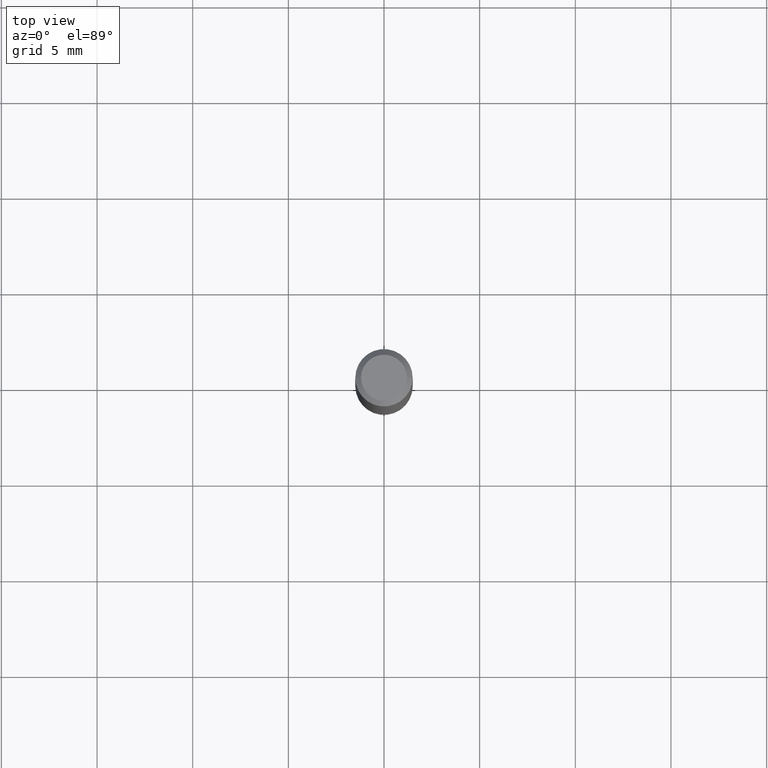
[diagram: clean part render]
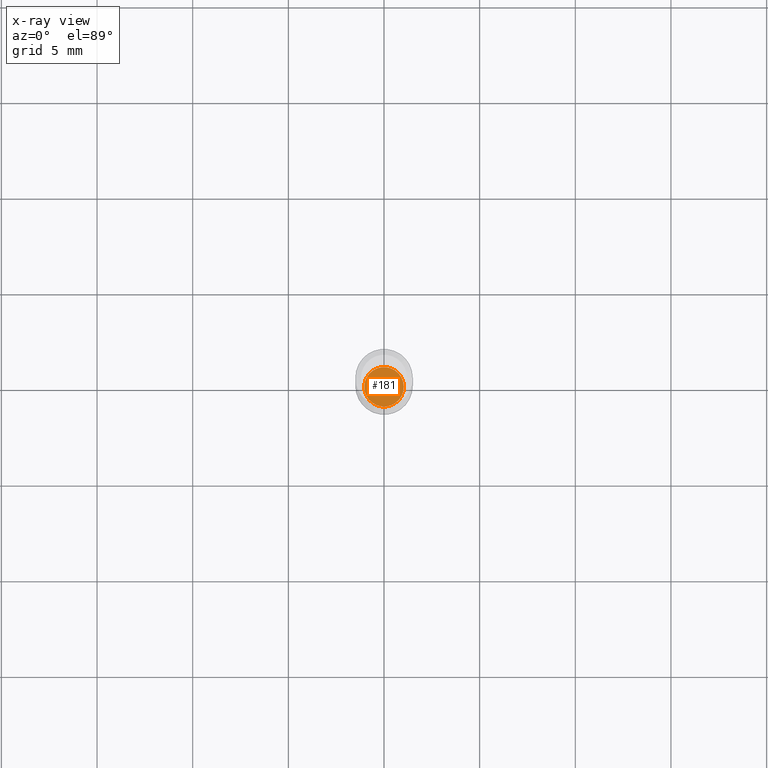
[diagram: x-ray — body ghosted, one internal face saturated and labeled with its STEP entity id]
A machine part, top view, then the same camera in x-ray: the body is ghosted and one INTERNAL B-rep face — a face not visible from any outside direction — is saturated and labeled: STEP entity #181.
In plain terms, the highlighted planar face has unit normal (-0, 0, 1).
Its self-contained STEP definition (entity closure, byte-faithful):
#1 = AXIS2_PLACEMENT_3D ( 'NONE', #198, #205, #444 ) ;
#7 = CARTESIAN_POINT ( 'NONE',  ( 2.676565608369631794E-29, -3.821426325363822773E-15, -1.094499999999999806 ) ) ;
#22 = VERTEX_POINT ( 'NONE', #147 ) ;
#65 = ORIENTED_EDGE ( 'NONE', *, *, #232, .F. ) ;
#75 = FACE_OUTER_BOUND ( 'NONE', #417, .T. ) ;
#99 = CARTESIAN_POINT ( 'NONE',  ( 2.676565608369631794E-29, -3.821426325363822773E-15, -1.094499999999999806 ) ) ;
#131 = DIRECTION ( 'NONE',  ( -2.445468806185136597E-29, 3.491481338843145583E-15, 1.000000000000000000 ) ) ;
#147 = CARTESIAN_POINT ( 'NONE',  ( -0.04064999999999999863, -3.529941476103230709E-15, -1.094499999999999806 ) ) ;
#148 = AXIS2_PLACEMENT_3D ( 'NONE', #7, #426, #389 ) ;
#155 = VERTEX_POINT ( 'NONE', #161 ) ;
#161 = CARTESIAN_POINT ( 'NONE',  ( 0.04064999999999999863, -4.105283758211769509E-15, -1.094499999999999806 ) ) ;
#181 = ADVANCED_FACE ( 'NONE', ( #75 ), #382, .F. ) ;
#198 = CARTESIAN_POINT ( 'NONE',  ( 2.676565608369631794E-29, -3.821426325363822773E-15, -1.094499999999999806 ) ) ;
#205 = DIRECTION ( 'NONE',  ( -2.438088387897960049E-29, 3.491481338843145188E-15, 1.000000000000000000 ) ) ;
#219 = ORIENTED_EDGE ( 'NONE', *, *, #466, .F. ) ;
#232 = EDGE_CURVE ( 'NONE', #155, #22, #300, .T. ) ;
#243 = DIRECTION ( 'NONE',  ( 1.000000000000000000, -6.982962677686262766E-15, 0.000000000000000000 ) ) ;
#300 = CIRCLE ( 'NONE', #308, 0.04064999999999999863 ) ;
#308 = AXIS2_PLACEMENT_3D ( 'NONE', #99, #131, #243 ) ;
#332 = CIRCLE ( 'NONE', #148, 0.04064999999999999863 ) ;
#382 = PLANE ( 'NONE',  #1 ) ;
#389 = DIRECTION ( 'NONE',  ( 1.000000000000000000, -6.982962677686262766E-15, 0.000000000000000000 ) ) ;
#417 = EDGE_LOOP ( 'NONE', ( #65, #219 ) ) ;
#426 = DIRECTION ( 'NONE',  ( -2.445468806185136597E-29, 3.491481338843145583E-15, 1.000000000000000000 ) ) ;
#444 = DIRECTION ( 'NONE',  ( 1.000000000000000000, -6.982962677686265922E-15, 4.876176775795935793E-29 ) ) ;
#466 = EDGE_CURVE ( 'NONE', #22, #155, #332, .T. ) ;